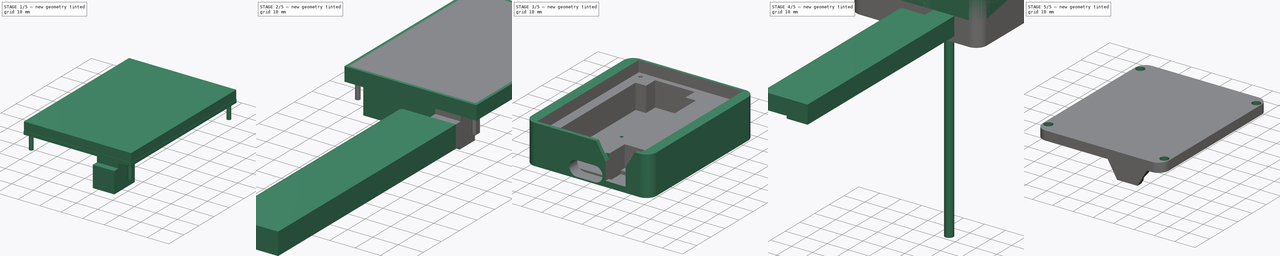
[diagram: build sequence overview — one tinted view per stage of 5, left to right]
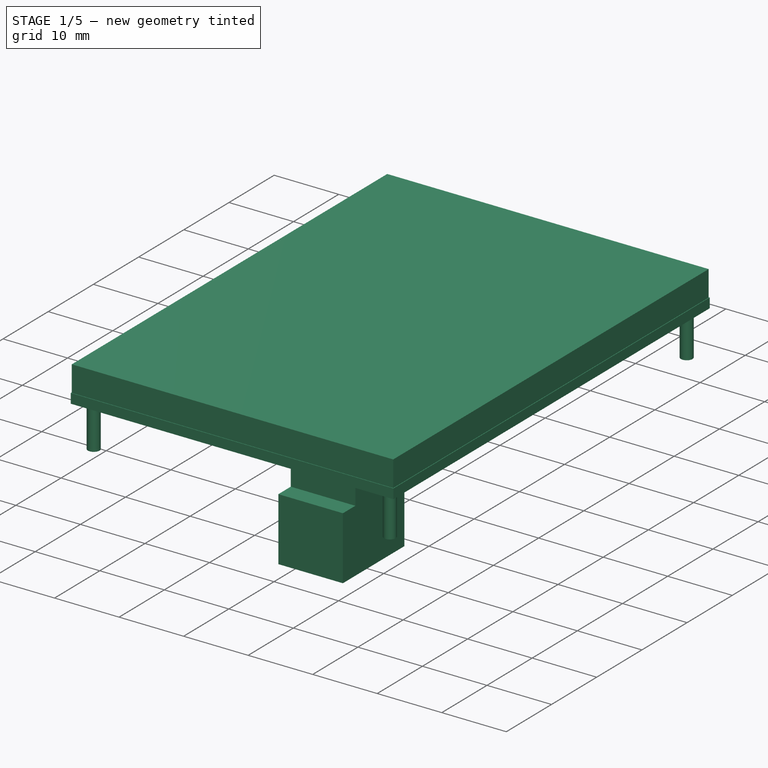
[diagram: stage 1 of 5 — iso view after this stage's code; geometry added in this stage tinted green]
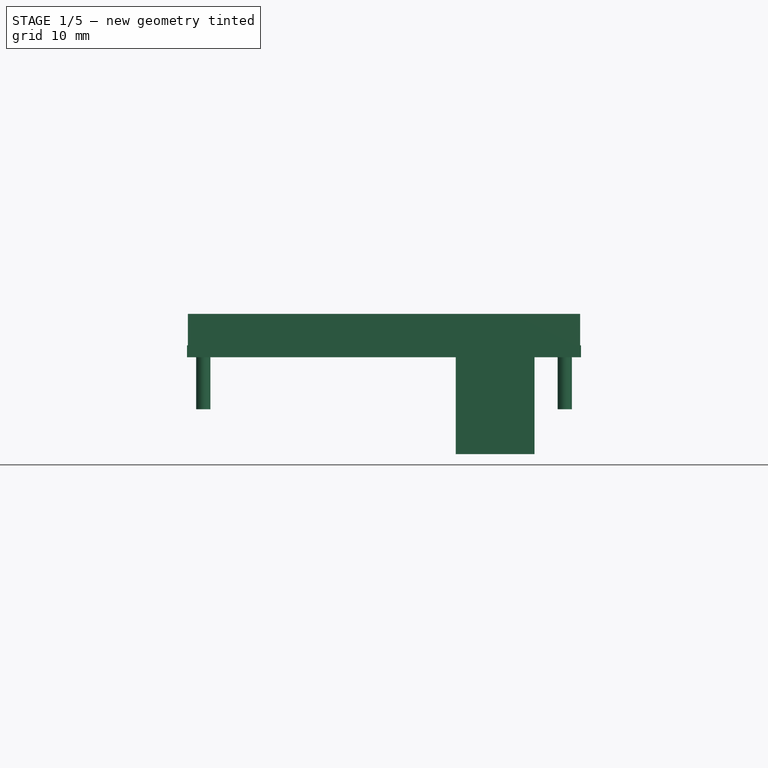
[diagram: stage 1 of 5 — front view after this stage's code; geometry added in this stage tinted green]
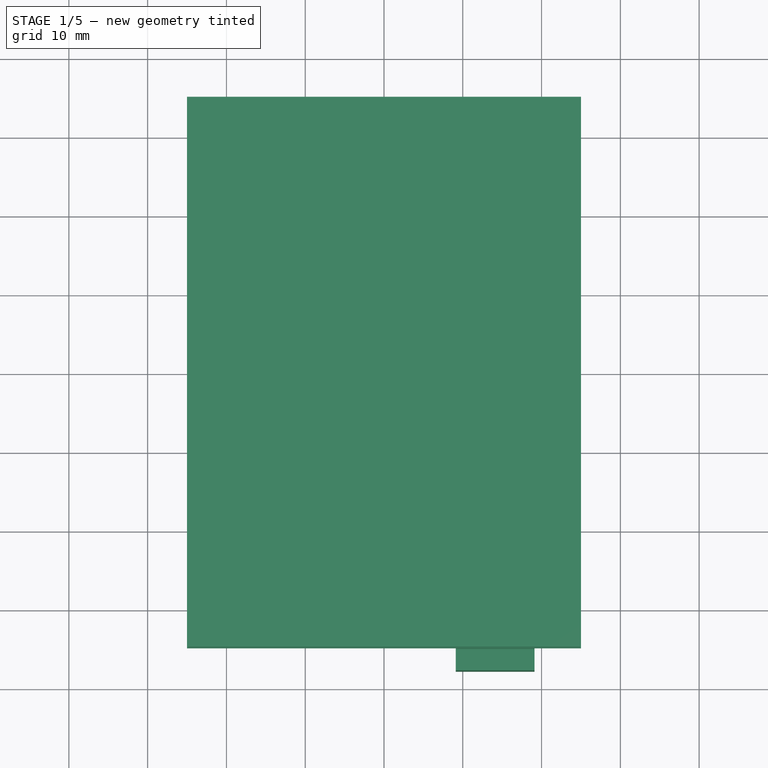
[diagram: stage 1 of 5 — top view after this stage's code; geometry added in this stage tinted green]
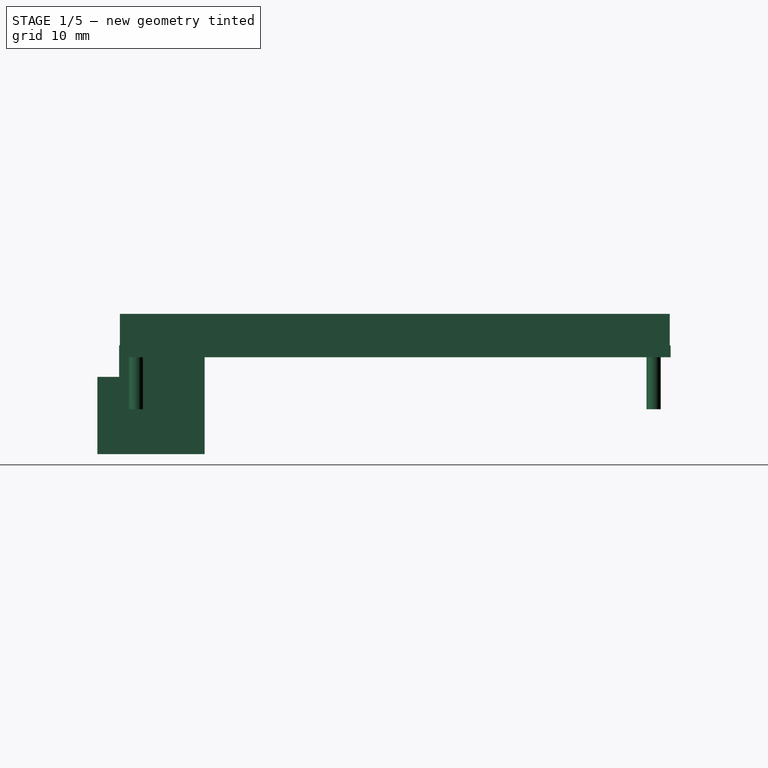
[diagram: stage 1 of 5 — right view after this stage's code; geometry added in this stage tinted green]
FCSTD DOCUMENT  (FreeCAD 1.0R39319 (Git))
Label: Digital audio bridge enclosure
License: All rights reserved
LicenseURL: http://en.wikipedia.org/wiki/All_rights_reserved
objects: Sketcher::SketchObject×16, PartDesign::Pad×12, PartDesign::Body×6, PartDesign::Pocket×5, PartDesign::SubShapeBinder×3, PartDesign::FeatureBase×3, PartDesign::Fillet×2, PartDesign::Boolean×2, PartDesign::Chamfer×2, Spreadsheet::Sheet×1
note: 114 computed .brp shape members not serialized (recipe doc carries the construction recipe); baked Part::Feature solids carry a one-line shape summary decoded from their .brp

FEATURE [Sketcher::SketchObject] Sketch
  ArcFitTolerance = 1e-06
  AttachmentSupport = -> [XY_Plane]
  FullyConstrained = true
  MakeInternals = false
  MapMode = 5
  sketch-geometry (5):
    g0: LineSegment StartX=-25 StartY=-35 StartZ=0 EndX=25 EndY=-35 EndZ=0
    g1: LineSegment StartX=25 StartY=-35 StartZ=0 EndX=25 EndY=35 EndZ=0
    g2: LineSegment StartX=25 StartY=35 StartZ=0 EndX=-25 EndY=35 EndZ=0
    g3: LineSegment StartX=-25 StartY=35 StartZ=0 EndX=-25 EndY=-35 EndZ=0
    g4: GeomPoint [constr] X=0 Y=0 Z=0
  constraints (12):
    c: Coincident(g0,g1)
    c: Coincident(g1,g2)
    c: Coincident(g2,g3)
    c: Coincident(g3,g0)
    c: Horizontal(g0)
    c: Horizontal(g2)
    c: Vertical(g1)
    c: Vertical(g3)
    c: Symmetric(g2,g0,g4)
    c: Distance(g1,g3) = 50
    c: Distance(g0,g2) = 70
    c: Coincident(g4,g-1)
FEATURE [PartDesign::Pad] Pad  label="Board"
  Direction = (0,0,1)
  Length = 1.5
  Length2 = 10
  Profile = -> Sketch
  ReferenceAxis = -> Sketch [N_Axis]
  Suppressed = false
  Type = 0
  expr: Length = <<Data>>.B2
FEATURE [Sketcher::SketchObject] Sketch001
  ArcFitTolerance = 1e-06
  AttachmentSupport = -> [Pad]
  ExternalGeometry = -> [Pad]
  FullyConstrained = true
  MakeInternals = false
  MapMode = 5
  Placement = pos=(0,0,1.5) rot=(0,0,1;0rad)
  expr: Constraints[10] = .Constraints.x
  expr: Constraints[11] = .Constraints.x
  expr: Constraints[8] = .Constraints.x
  sketch-geometry (4):
    g0: LineSegment StartX=-24.9 StartY=34.9 StartZ=0 EndX=-24.9 EndY=-34.9 EndZ=0
    g1: LineSegment StartX=-24.9 StartY=-34.9 StartZ=0 EndX=24.9 EndY=-34.9 EndZ=0
    g2: LineSegment StartX=24.9 StartY=-34.9 StartZ=0 EndX=24.9 EndY=34.9 EndZ=0
    g3: LineSegment StartX=24.9 StartY=34.9 StartZ=0 EndX=-24.9 EndY=34.9 EndZ=0
  constraints (12):
    c: Coincident(g0,g1)
    c: Coincident(g1,g2)
    c: Coincident(g2,g3)
    c: Coincident(g3,g0)
    c: Vertical(g0)
    c: Vertical(g2)
    c: Horizontal(g1)
    c: Horizontal(g3)
    c: Distance(g-5,g2) = 0.1
    c: Distance(g-4,g3) = 0.1  'x'
    c: Distance(g-3,g0) = 0.1
    c: Distance(g-6,g1) = 0.1
FEATURE [PartDesign::Pad] Pad001  label="Clearance for solder work and screws"
  BaseFeature = -> Pad
  Direction = (0,0,1)
  Length = 4
  Length2 = 10
  Profile = -> Sketch001
  ReferenceAxis = -> Sketch001 [N_Axis]
  Suppressed = false
  Type = 0
FEATURE [Sketcher::SketchObject] Sketch002
  ArcFitTolerance = 1e-06
  AttachmentSupport = -> [Pad001]
  ExternalGeometry = -> [Pad001]
  FullyConstrained = true
  MakeInternals = false
  MapMode = 5
  Placement = pos=(0,0,0) rot=(1,0,0;3.14159rad)
  expr: .Constraints.screw = <<Data>>.B17
  expr: Constraints[3] = .Constraints.screw
  expr: Constraints[4] = .Constraints.screw
  expr: Constraints[5] = .Constraints.screw
  sketch-geometry (4):
    g0: Circle CenterX=-22.94 CenterY=32.85 CenterZ=0 NormalX=0 NormalY=0 NormalZ=1 AngleXU=0 Radius=0.9
    g1: Circle CenterX=22.94 CenterY=32.85 CenterZ=0 NormalX=0 NormalY=0 NormalZ=1 AngleXU=0 Radius=0.9
    g2: Circle CenterX=-22.94 CenterY=-32.85 CenterZ=0 NormalX=0 NormalY=0 NormalZ=1 AngleXU=0 Radius=0.9
    g3: Circle CenterX=22.94 CenterY=-32.85 CenterZ=0 NormalX=0 NormalY=0 NormalZ=1 AngleXU=0 Radius=0.9
  constraints (9):
    c: Diameter(g0) = 1.8  'screw'
    c: Distance(g0,g-3) = 1.16
    c: Distance(g0,g-4) = 1.25
    c: Diameter(g1) = 1.8
    c: Diameter(g3) = 1.8
    c: Diameter(g2) = 1.8
    c: Symmetric(g0,g2,g-1)
    c: Symmetric(g0,g1,g-2)
    c: Symmetric(g1,g3,g-1)
FEATURE [PartDesign::Pad] Pad002  label="Screws"
  BaseFeature = -> Pad001
  Direction = (0,0,-1)
  Length = 6.6
  Length2 = 10
  Profile = -> Sketch002
  ReferenceAxis = -> Sketch002 [N_Axis]
  Suppressed = false
  Type = 0
  expr: Length = 8 mm + 0.1 mm - <<Board>>.Length
FEATURE [Sketcher::SketchObject] Sketch003
  ArcFitTolerance = 1e-06
  AttachmentSupport = -> [Pad002]
  ExternalGeometry = -> [Pad002]
  FullyConstrained = true
  MakeInternals = false
  MapMode = 5
  Placement = pos=(0,0,0) rot=(1,0,0;3.14159rad)
  expr: Constraints[10] = <<Data>>.B6
  expr: Constraints[11] = <<Data>>.B7 - <<Data>>.B4
  expr: Constraints[9] = <<Data>>.B5
  sketch-geometry (4):
    g0: LineSegment StartX=19.1 StartY=35 StartZ=0 EndX=9.1 EndY=35 EndZ=0
    g1: LineSegment StartX=9.1 StartY=35 StartZ=0 EndX=9.1 EndY=24.15 EndZ=0
    g2: LineSegment StartX=9.1 StartY=24.15 StartZ=0 EndX=19.1 EndY=24.15 EndZ=0
    g3: LineSegment StartX=19.1 StartY=24.15 StartZ=0 EndX=19.1 EndY=35 EndZ=0
  constraints (12):
    c: Coincident(g0,g1)
    c: Coincident(g1,g2)
    c: Coincident(g2,g3)
    c: Coincident(g3,g0)
    c: Horizontal(g0)
    c: Horizontal(g2)
    c: Vertical(g1)
    c: Vertical(g3)
    c: PointOnObject(g0,g-3)
    c: DistanceX(g0,g-3) = 5.9
    c: DistanceX(g0,g0) = 10
    c: DistanceY(g1,g1) = 10.85
FEATURE [Spreadsheet::Sheet] Spreadsheet  label="Data"
  cells = A1='Dimension; B1='Value; C1='Explanation; A2='Board thickness; B2==1.5 mm; C2='The thickness of the perfboard; A3='From bottom of board to bottom of diode protrusion (after soldering); B3==4 mm; C3='Measures how high the "chin" (bottom part) of the diode stands, starting from the other side of the board (the side where the solder points are); A4='From short edge of board to farthest point of diode protrusion (after soldering); B4==2.75 mm; C4='Measures how much the "chin" of the DLT1150a diode protrudes from the edge of the perfboard; A5='From long edge of board to side of diode; B5==5.9 mm; A6='Diode width; B6==10 mm; A7='Diode length; B7==13.6 mm; A8='From bottom of board to top of diode; B8==13.8 mm; A9='Top rear diode notch width; B9==2.8 mm; C9='See circuit shape for how this value affects the diode; A10='Top rear diode notch depth; B10==1.65 mm; C10='See circuit shape for how this value affects the diode; A11='Top front diode notch width; B11==2.2 mm; C11='See circuit shape for how this value affects the diode; A12='Top front diode notch depth; B12==1.1 mm; C12='See circuit shape for how this value affects the diode; A13='ESP32 surrounding tolerance; B13==1 mm; C13='Clearance around edges of ESP in box; A14='Cut depths for cables; B14==100 mm; C14='Absurdly large value for cuts in box (for the cables and the face of the diode) to go through; A15='Box length; B15=62; A16='Box width; B16=75; A17='Screw inner thread; B17==1.8 mm; C17='The size of the hole to bore for screws; A18='Box fillet radius; B18==5 mm; A19='Screw head size; B19==4 mm; C19='The size of the head of the screws
FEATURE [PartDesign::Pad] Pad003  label="Diode bottom"
  BaseFeature = -> Pad002
  Direction = (0,0,-1)
  Length = 2.5
  Length2 = 10
  Profile = -> Sketch003
  ReferenceAxis = -> Sketch003 [N_Axis]
  Suppressed = false
  Type = 0
  expr: Length = <<Data>>.B3 - <<Data>>.B2
FEATURE [Sketcher::SketchObject] Sketch004
  ArcFitTolerance = 1e-06
  AttachmentSupport = -> [Pad003]
  ExternalGeometry = -> [Pad003]
  FullyConstrained = true
  MakeInternals = false
  MapMode = 5
  Placement = pos=(0,0,-2.5) rot=(1,0,0;3.14159rad)
  expr: Constraints[9] = <<Data>>.B7
  sketch-geometry (4):
    g0: LineSegment StartX=9.1 StartY=24.15 StartZ=0 EndX=19.1 EndY=24.15 EndZ=0
    g1: LineSegment StartX=19.1 StartY=24.15 StartZ=0 EndX=19.1 EndY=37.75 EndZ=0
    g2: LineSegment StartX=19.1 StartY=37.75 StartZ=0 EndX=9.1 EndY=37.75 EndZ=0
    g3: LineSegment StartX=9.1 StartY=37.75 StartZ=0 EndX=9.1 EndY=24.15 EndZ=0
  constraints (10):
    c: Coincident(g0,g1)
    c: Coincident(g1,g2)
    c: Coincident(g2,g3)
    c: Coincident(g3,g0)
    c: Horizontal(g2)
    c: Vertical(g1)
    c: Vertical(g3)
    c: Coincident(g0,g-3)
    c: Coincident(g0,g-3)
    c: DistanceY(g3,g3) = 13.6
FEATURE [PartDesign::Pad] Pad004  label="Diode top"
  BaseFeature = -> Pad003
  Direction = (0,0,-1)
  Length = 9.8
  Length2 = 10
  Profile = -> Sketch004
  ReferenceAxis = -> Sketch004 [N_Axis]
  Suppressed = false
  Type = 0
  expr: Length = <<Data>>.B8 - <<Diode bottom>>.Length - <<Board>>.Length
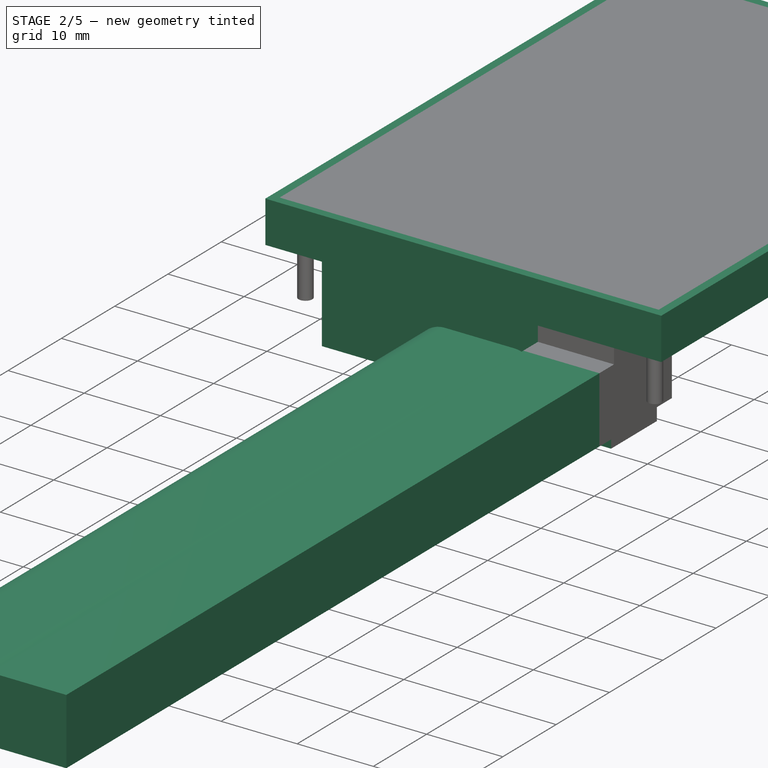
[diagram: stage 2 of 5 — iso view after this stage's code; geometry added in this stage tinted green]
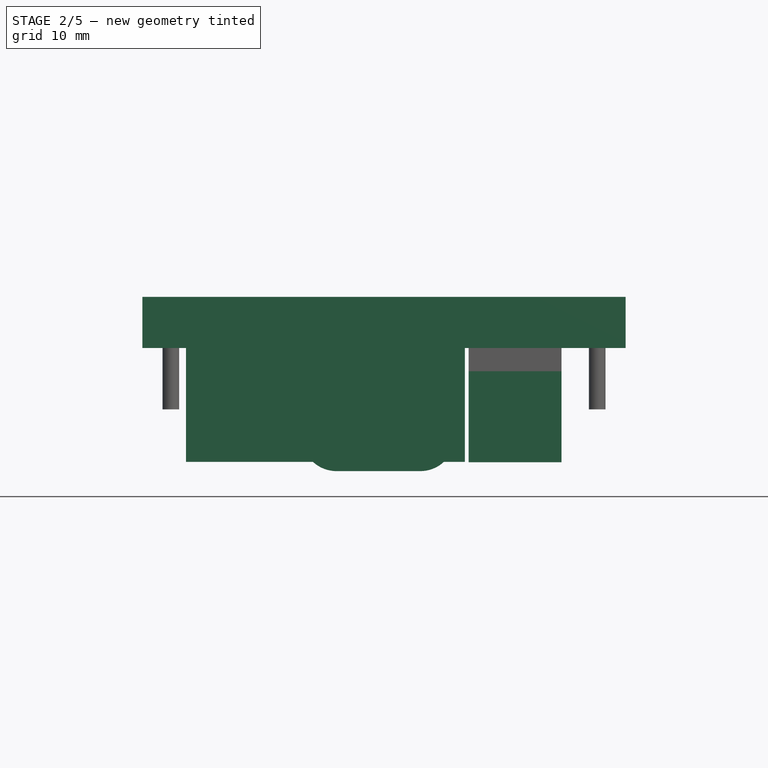
[diagram: stage 2 of 5 — front view after this stage's code; geometry added in this stage tinted green]
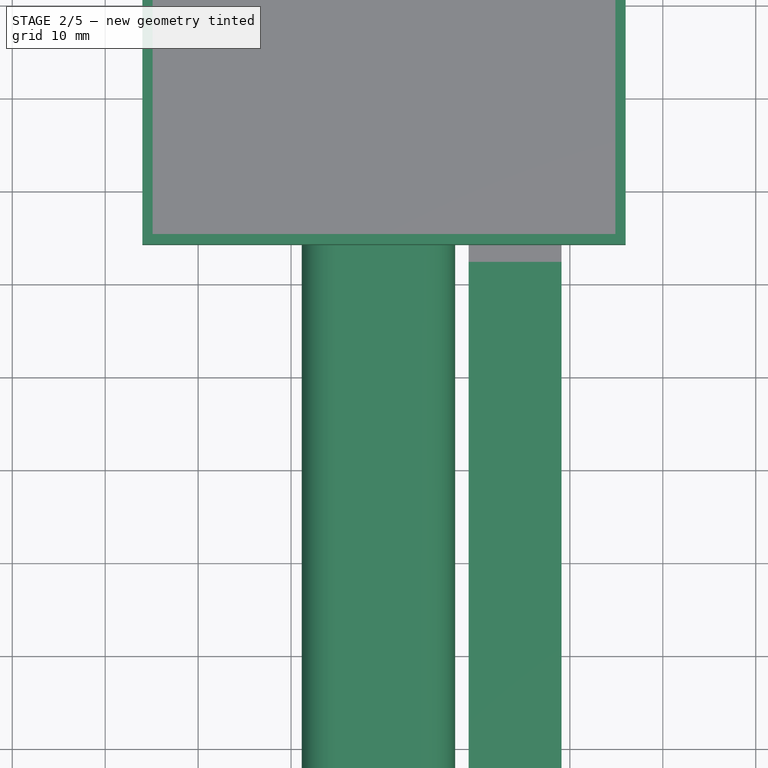
[diagram: stage 2 of 5 — top view after this stage's code; geometry added in this stage tinted green]
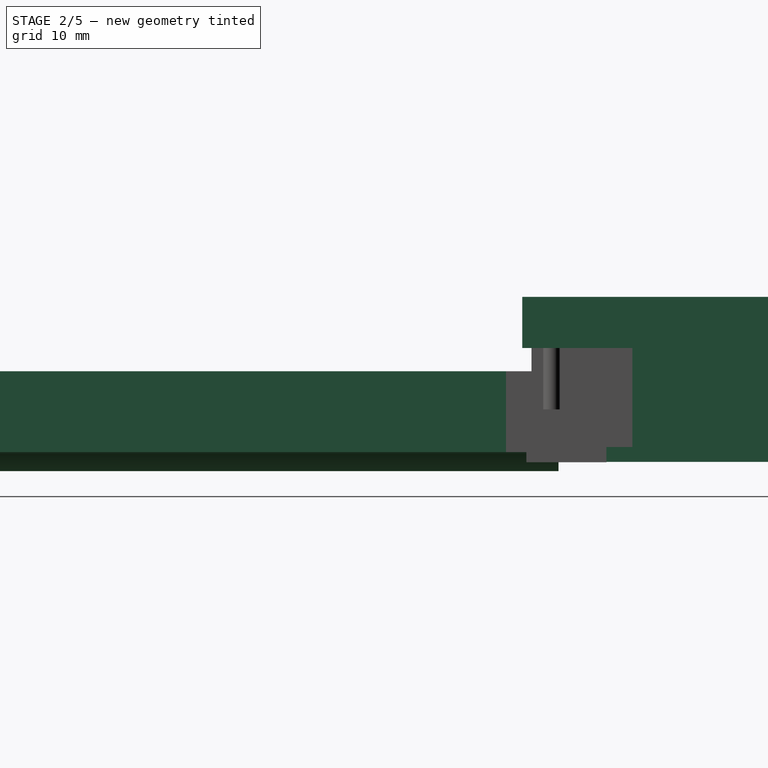
[diagram: stage 2 of 5 — right view after this stage's code; geometry added in this stage tinted green]
FEATURE [Sketcher::SketchObject] Sketch005
  ArcFitTolerance = 1e-06
  AttachmentSupport = -> [Pad004]
  ExternalGeometry = -> [Pad004]
  FullyConstrained = true
  MakeInternals = false
  MapMode = 5
  Placement = pos=(19.1,0,0) rot=(0.57735,0.57735,0.57735;2.0944rad)
  expr: Constraints[18] = <<Data>>.B9
  expr: Constraints[19] = <<Data>>.B10
  expr: Constraints[20] = <<Data>>.B11
  expr: Constraints[21] = <<Data>>.B12
  sketch-geometry (8):
    g0: LineSegment StartX=-37.75 StartY=-12.3 StartZ=0 EndX=-35.55 EndY=-12.3 EndZ=0
    g1: LineSegment StartX=-35.55 StartY=-12.3 StartZ=0 EndX=-35.55 EndY=-11.2 EndZ=0
    g2: LineSegment StartX=-35.55 StartY=-11.2 StartZ=0 EndX=-37.75 EndY=-11.2 EndZ=0
    g3: LineSegment StartX=-37.75 StartY=-11.2 StartZ=0 EndX=-37.75 EndY=-12.3 EndZ=0
    g4: LineSegment StartX=-24.15 StartY=-12.3 StartZ=0 EndX=-24.15 EndY=-10.65 EndZ=0
    g5: LineSegment StartX=-24.15 StartY=-10.65 StartZ=0 EndX=-26.95 EndY=-10.65 EndZ=0
    g6: LineSegment StartX=-26.95 StartY=-10.65 StartZ=0 EndX=-26.95 EndY=-12.3 EndZ=0
    g7: LineSegment StartX=-26.95 StartY=-12.3 StartZ=0 EndX=-24.15 EndY=-12.3 EndZ=0
  constraints (22):
    c: Coincident(g0,g1)
    c: Coincident(g1,g2)
    c: Coincident(g2,g3)
    c: Coincident(g3,g0)
    c: Horizontal(g0)
    c: Horizontal(g2)
    c: Vertical(g1)
    c: Vertical(g3)
    c: Coincident(g0,g-4)
    c: Coincident(g4,g5)
    c: Coincident(g5,g6)
    c: Coincident(g6,g7)
    c: Coincident(g7,g4)
    c: Vertical(g4)
    c: Vertical(g6)
    c: Horizontal(g5)
    c: Horizontal(g7)
    c: Coincident(g4,g-3)
    c: DistanceX(g7,g7) = 2.8
    c: DistanceY(g4,g4) = 1.65
    c: DistanceX(g0,g0) = 2.2
    c: DistanceY(g3,g3) = 1.1
FEATURE [PartDesign::Pocket] Pocket  label="Notches on diode top (face / back sides)"
  BaseFeature = -> Pad004
  Direction = (-1,0,0)
  Length = 10
  Length2 = 5
  Profile = -> Sketch005
  ReferenceAxis = -> Sketch005 [N_Axis]
  Suppressed = false
  Type = 0
  expr: Length = <<Data>>.B6
FEATURE [Sketcher::SketchObject] Sketch006
  ArcFitTolerance = 1e-06
  AttachmentSupport = -> [Pocket]
  ExternalGeometry = -> [Pocket]
  FullyConstrained = true
  MakeInternals = false
  MapMode = 5
  Placement = pos=(0,0,0) rot=(1,0,0;3.14159rad)
  expr: Constraints[18] = 2.5 mm - <<Data>>.B13
  expr: Constraints[20] = 4.7 mm - <<Data>>.B13
  expr: Constraints[3] = 3.9 mm - <<Data>>.B13
  expr: Constraints[7] = 17.3 mm - <<Data>>.B13
  sketch-geometry (8):
    g0: LineSegment StartX=8.7 StartY=32.1 StartZ=0 EndX=-21.3 EndY=32.1 EndZ=0
    g1: LineSegment StartX=-21.3 StartY=32.1 StartZ=0 EndX=-21.3 EndY=-27 EndZ=0
    g2: LineSegment StartX=-16.1 StartY=-33.5 StartZ=0 EndX=3.5 EndY=-33.5 EndZ=0
    g3: LineSegment StartX=8.7 StartY=-27 StartZ=0 EndX=8.7 EndY=32.1 EndZ=0
    g4: LineSegment StartX=-21.3 StartY=-27 StartZ=0 EndX=-16.1 EndY=-27 EndZ=0
    g5: LineSegment StartX=-16.1 StartY=-27 StartZ=0 EndX=-16.1 EndY=-33.5 EndZ=0
    g6: LineSegment StartX=3.5 StartY=-33.5 StartZ=0 EndX=3.5 EndY=-27 EndZ=0
    g7: LineSegment StartX=3.5 StartY=-27 StartZ=0 EndX=8.7 EndY=-27 EndZ=0
  constraints (24):
    c: Coincident(g3,g0)
    c: Coincident(g0,g1)
    c: Horizontal(g0)
    c: Distance(g0,g-5) = 2.9
    c: Vertical(g1)
    c: Horizontal(g2)
    c: Vertical(g3)
    c: Distance(g-4,g3) = 16.3
    c: Coincident(g1,g4)
    c: Horizontal(g4)
    c: Coincident(g4,g5)
    c: Coincident(g5,g2)
    c: Vertical(g5)
    c: Coincident(g2,g6)
    c: Vertical(g6)
    c: Coincident(g6,g7)
    c: Coincident(g7,g3)
    c: Horizontal(g7)
    c: Distance(g2,g-6) = 1.5
    c: DistanceX(g7,g7) = 5.2
    c: Distance(g1,g-3) = 3.7
    c: Equal(g7,g4)
    c: Equal(g5,g6)
    c: DistanceY(g6,g6) = 6.5
FEATURE [PartDesign::Pad] Pad005  label="ESP shape"
  BaseFeature = -> Pocket
  Direction = (0,0,-1)
  Length = 12.25
  Length2 = 10
  Profile = -> Sketch006
  ReferenceAxis = -> Sketch006 [N_Axis]
  Suppressed = false
  Type = 0
  expr: Length = 12.75 mm - <<Board>>.Length + <<Data>>.B13
FEATURE [Sketcher::SketchObject] Sketch007
  ArcFitTolerance = 1e-06
  AttachmentSupport = -> [Pad005]
  ExternalGeometry = -> [Pad005]
  FullyConstrained = false
  MakeInternals = false
  MapMode = 5
  Placement = pos=(0,-32.1,0) rot=(1,0,0;1.5708rad)
  expr: Constraints[1] = <<Data>>.B13 + 3.5 mm / 2
  expr: Constraints[3] = 3.8 mm + <<Data>>.B13
  sketch-geometry (5):
    g0: LineSegment [constr] StartX=3.9 StartY=-9.5 StartZ=0 EndX=-5.1 EndY=-9.5 EndZ=0
    g1: ArcOfCircle CenterX=3.89834 CenterY=-9.5 CenterZ=0 NormalX=0 NormalY=0 NormalZ=1 AngleXU=0 Radius=3.75 StartAngle=4.71239 EndAngle=7.85398
    g2: ArcOfCircle CenterX=-5.1 CenterY=-9.5 CenterZ=0 NormalX=0 NormalY=0 NormalZ=1 AngleXU=0 Radius=3.75 StartAngle=1.5708 EndAngle=4.71239
    g3: LineSegment StartX=3.89834 StartY=-13.25 StartZ=0 EndX=-5.1 EndY=-13.25 EndZ=0
    g4: LineSegment StartX=3.89834 StartY=-5.75 StartZ=0 EndX=-5.1 EndY=-5.75 EndZ=0
  constraints (12):
    c: Horizontal(g0)
    c: Distance(g0,g-3) = 2.75
    c: DistanceX(g0,g0) = 9
    c: DistanceX(g0,g-3) = 4.8
    c: Tangent(g1,g3) = 1.5708
    c: Tangent(g1,g4) = -1.5708
    c: Tangent(g2,g3) = 1.5708
    c: Tangent(g2,g4) = -1.5708
    c: Equal(g1,g2)
    c: Horizontal(g4)
    c: Coincident(g2,g0)
    c: DistanceY(g2,g2) = 7.5
FEATURE [PartDesign::Pad] Pad006  label="Extension cut for USB cable"
  BaseFeature = -> Pad005
  Direction = (0,-1,2e-16)
  Length = 100
  Length2 = 10
  Profile = -> Sketch007
  ReferenceAxis = -> Sketch007 [N_Axis]
  Suppressed = false
  Type = 0
  expr: Length = <<Data>>.B14
FEATURE [PartDesign::Pad] Pad007  label="Extension cut for SPDIF cable"
  BaseFeature = -> Pad006
  Direction = (0,-1,0)
  Length = 100
  Length2 = 10
  Profile = -> Pad006 [Face39]
  Suppressed = false
  Type = 0
  expr: Length = <<Data>>.B14
FEATURE [Sketcher::SketchObject] Sketch009
  ArcFitTolerance = 1e-06
  AttachmentSupport = -> [Pad007]
  ExternalGeometry = -> [Pad007]
  FullyConstrained = true
  MakeInternals = false
  MapMode = 5
  Placement = pos=(0,0,1.5) rot=(0,0,1;0rad)
  expr: Constraints[10] = <<Data>>.B13
  expr: Constraints[11] = <<Data>>.B13
  expr: Constraints[8] = <<Data>>.B13
  expr: Constraints[9] = <<Data>>.B13
  sketch-geometry (4):
    g0: LineSegment StartX=-26 StartY=36 StartZ=0 EndX=-26 EndY=-36 EndZ=0
    g1: LineSegment StartX=-26 StartY=-36 StartZ=0 EndX=26 EndY=-36 EndZ=0
    g2: LineSegment StartX=26 StartY=-36 StartZ=0 EndX=26 EndY=36 EndZ=0
    g3: LineSegment StartX=26 StartY=36 StartZ=0 EndX=-26 EndY=36 EndZ=0
  constraints (12):
    c: Coincident(g0,g1)
    c: Coincident(g1,g2)
    c: Coincident(g2,g3)
    c: Coincident(g3,g0)
    c: Vertical(g0)
    c: Vertical(g2)
    c: Horizontal(g1)
    c: Horizontal(g3)
    c: Distance(g3,g-6) = 1
    c: Distance(g-5,g2) = 1
    c: Distance(g0,g-3) = 1
    c: Distance(g-4,g1) = 1
FEATURE [PartDesign::Pad] Pad009
  BaseFeature = -> Pad007
  Direction = (0,0,1)
  Length = 4
  Length2 = 1.5
  Profile = -> Sketch009
  ReferenceAxis = -> Sketch009 [N_Axis]
  Suppressed = false
  Type = 4
  expr: Length = <<Clearance for solder work and screws>>.Length
  expr: Length2 = <<Board>>.Length
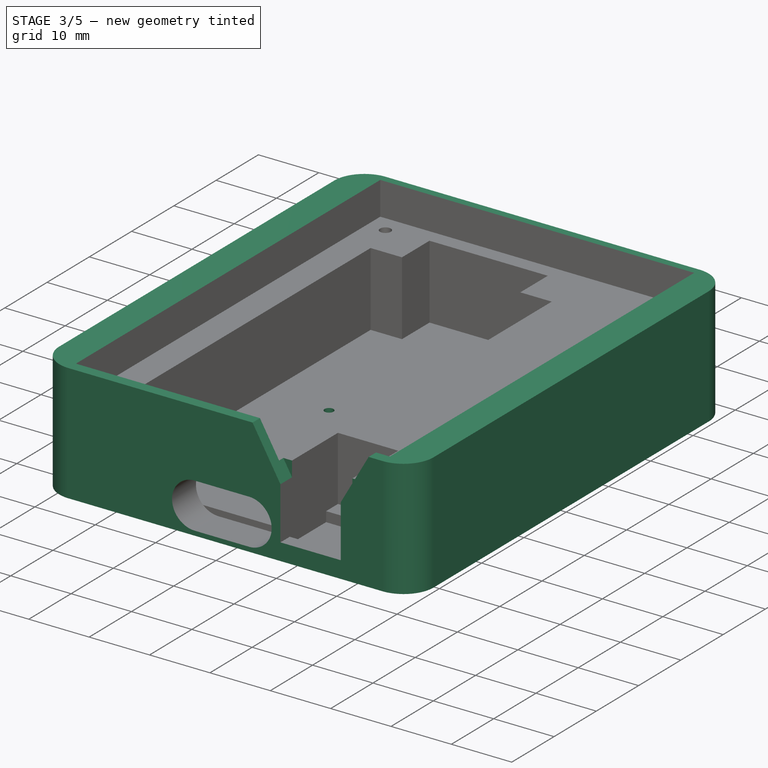
[diagram: stage 3 of 5 — iso view after this stage's code; geometry added in this stage tinted green]
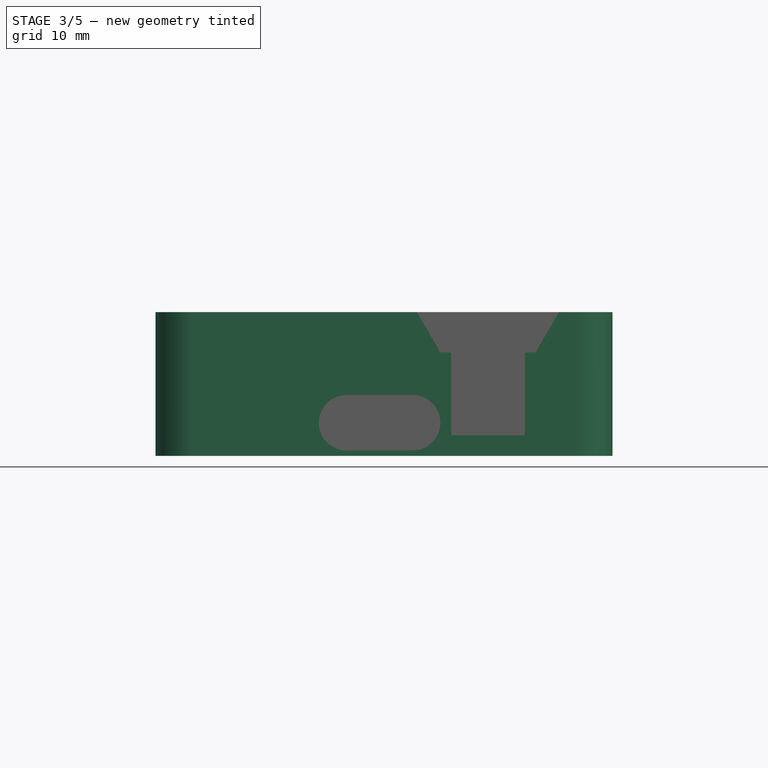
[diagram: stage 3 of 5 — front view after this stage's code; geometry added in this stage tinted green]
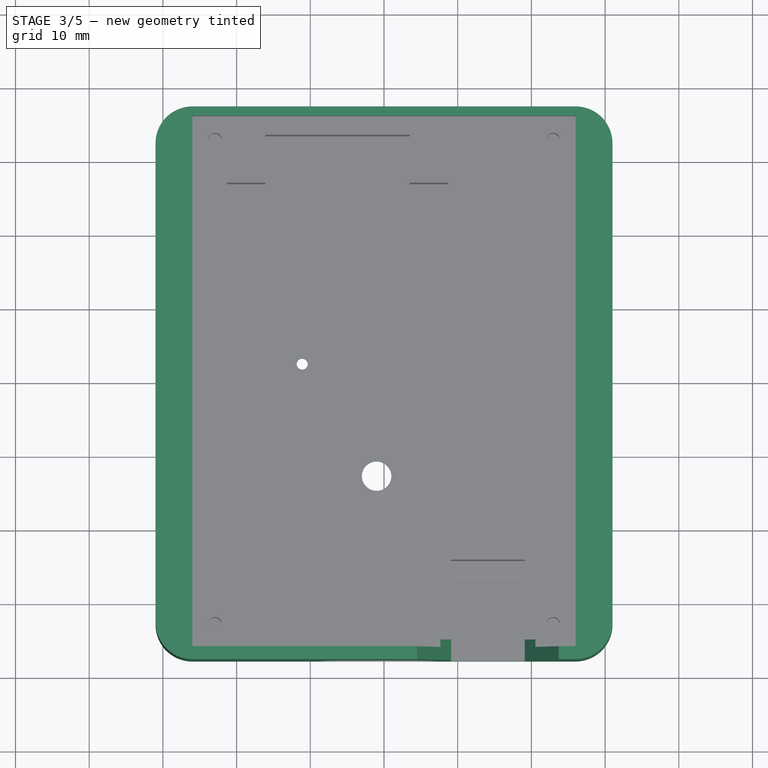
[diagram: stage 3 of 5 — top view after this stage's code; geometry added in this stage tinted green]
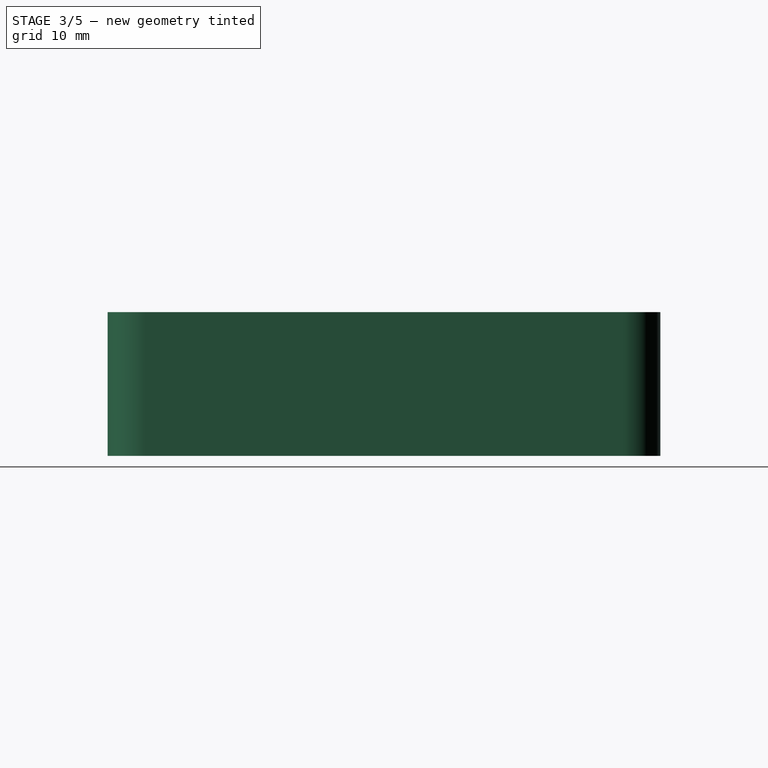
[diagram: stage 3 of 5 — right view after this stage's code; geometry added in this stage tinted green]
FEATURE [PartDesign::SubShapeBinder] Binder
  BindCopyOnChange = 0
  BindMode = 0
  ClaimChildren = false
  Context = -> Body001 [Binder.]
  Fuse = false
  MakeFace = true
  OffsetFill = false
  OffsetIntersection = false
  OffsetJoinType = 0
  OffsetOpenResult = false
  PartialLoad = false
  Relative = true
  Support = -> [Body]
  _Version = 2
FEATURE [Sketcher::SketchObject] Sketch008
  ArcFitTolerance = 1e-06
  AttachmentSupport = -> [Binder]
  ExternalGeometry = -> [Binder]
  FullyConstrained = true
  MakeInternals = false
  MapMode = 5
  Placement = pos=(0,0,0) rot=(1,0,0;3.14159rad)
  expr: Constraints[8] = <<Data>>.B15
  expr: Constraints[9] = -<<Data>>.B16
  sketch-geometry (4):
    g0: LineSegment StartX=-31 StartY=37.75 StartZ=0 EndX=31 EndY=37.75 EndZ=0
    g1: LineSegment StartX=31 StartY=37.75 StartZ=0 EndX=31 EndY=-37.25 EndZ=0
    g2: LineSegment StartX=31 StartY=-37.25 StartZ=0 EndX=-31 EndY=-37.25 EndZ=0
    g3: LineSegment StartX=-31 StartY=-37.25 StartZ=0 EndX=-31 EndY=37.75 EndZ=0
  constraints (11):
    c: Coincident(g0,g1)
    c: Coincident(g1,g2)
    c: Coincident(g2,g3)
    c: Coincident(g3,g0)
    c: Horizontal(g0)
    c: Vertical(g1)
    c: Vertical(g3)
    c: PointOnObject(g-3,g0)
    c: DistanceX(g0,g0) = 62
    c: DistanceY(g1,g1) = -75
    c: Symmetric(g2,g1,g-2)
FEATURE [PartDesign::Pad] Pad008
  Direction = (0,0,-1)
  Length = 14
  Length2 = 5.5
  Profile = -> Sketch008
  ReferenceAxis = -> Sketch008 [N_Axis]
  Suppressed = false
  Type = 4
  expr: Length2 = <<Clearance for solder work and screws>>.Length + <<Board>>.Length
FEATURE [PartDesign::SubShapeBinder] Binder002  label="lower box binder"
  BindCopyOnChange = 0
  BindMode = 0
  ClaimChildren = false
  Context = -> Body003 [Binder002.]
  Fuse = false
  MakeFace = true
  OffsetFill = false
  OffsetIntersection = false
  OffsetJoinType = 0
  OffsetOpenResult = false
  PartialLoad = false
  Relative = true
  Support = -> [Body001[Pocket002.]]
  _Version = 2
FEATURE [Sketcher::SketchObject] Sketch015
  ArcFitTolerance = 1e-06
  AttachmentSupport = -> [Pad007]
  ExternalGeometry = -> [Pad007]
  FullyConstrained = true
  MakeInternals = false
  MapMode = 5
  Placement = pos=(0,0,-12.25) rot=(1,0,0;3.14159rad)
  expr: Constraints[0] = 18.5 mm + <<Data>>.B13
  expr: Constraints[2] = 9.2 mm + <<Data>>.B13
  expr: Constraints[3] = 34.7 mm - 1 mm + <<Data>>.B13
  expr: Constraints[5] = 21.8 mm + <<Data>>.B13 - 2.5 mm
  sketch-geometry (2):
    g0: Circle CenterX=-1 CenterY=12.6 CenterZ=0 NormalX=0 NormalY=0 NormalZ=1 AngleXU=0 Radius=2
    g1: Circle CenterX=-11.1 CenterY=-2.6 CenterZ=0 NormalX=0 NormalY=0 NormalZ=1 AngleXU=0 Radius=0.75
  constraints (6):
    c: Distance(g0,g-4) = 19.5
    c: Diameter(g0) = 4
    c: Distance(g1,g-5) = 10.2
    c: Distance(g1,g-4) = 34.7
    c: Diameter(g1) = 1.5
    c: Distance(g0,g-5) = 20.3
FEATURE [PartDesign::Pad] Pad011
  BaseFeature = -> Pad009
  Direction = (0,0,-1)
  Length = 100
  Length2 = 10
  Profile = -> Sketch015
  ReferenceAxis = -> Sketch015 [N_Axis]
  Suppressed = false
  Type = 0
  expr: Length = <<Data>>.B14
FEATURE [PartDesign::Body] Body  label="Circuit shape"
  AllowCompound = true
  Group = -> [Sketch,Pad,Sketch001,Pad001,Sketch002,Pad002,Sketch003,Pad003,Sketch004,Pad004,Sketch005,Pocket,Sketch006,Pad005,Sketch007,Pad006,Pad007,Sketch009,Pad009,Sketch015,Pad011]
  Origin = -> Origin
  Tip = -> Pad011
FEATURE [PartDesign::FeatureBase] Clone
  BaseFeature = -> Body
  Suppressed = false
FEATURE [PartDesign::Body] Body002  label="Circuit shape for box lower cut"
  AllowCompound = true
  Group = -> [Clone]
  Origin = -> Origin002
  Tip = -> Clone
FEATURE [PartDesign::Boolean] Boolean
  BaseFeature = -> Pad008
  Group = -> [Body002]
  Suppressed = false
  Type = 1
  UsePlacement = true
FEATURE [Sketcher::SketchObject] Sketch010
  ArcFitTolerance = 1e-06
  AttachmentSupport = -> [Boolean]
  ExternalGeometry = -> [Boolean]
  FullyConstrained = true
  MakeInternals = false
  MapMode = 5
  Placement = pos=(0,-35,0) rot=(0,0.707107,0.707107;3.14159rad)
  sketch-geometry (4):
    g0: LineSegment StartX=-19.1 StartY=-2.5 StartZ=0 EndX=-9.1 EndY=-2.5 EndZ=0
    g1: LineSegment StartX=-9.1 StartY=-2.5 StartZ=0 EndX=-4.4812 EndY=5.5 EndZ=0
    g2: LineSegment StartX=-19.1 StartY=-2.5 StartZ=0 EndX=-23.7188 EndY=5.5 EndZ=0
    g3: LineSegment StartX=-23.7188 StartY=5.5 StartZ=0 EndX=-4.4812 EndY=5.5 EndZ=0
  constraints (10):
    c: Coincident(g0,g-3)
    c: Coincident(g0,g-3)
    c: Coincident(g1,g0)
    c: PointOnObject(g1,g-4)
    c: Coincident(g2,g0)
    c: PointOnObject(g2,g-4)
    c: Angle(g-3,g2) = 2.0944
    c: Angle(g1,g0) = 2.0944
    c: Coincident(g3,g2)
    c: Coincident(g3,g1)
FEATURE [PartDesign::Pocket] Pocket001
  BaseFeature = -> Boolean
  Direction = (0,-1,2e-16)
  Length = 5
  Length2 = 5
  Profile = -> Sketch010
  ReferenceAxis = -> Sketch010 [N_Axis]
  Suppressed = false
  Type = 1
FEATURE [PartDesign::Body] Body004  label="Circuit shape for box upper cut"
  AllowCompound = true
  Group = -> [Clone001]
  Origin = -> Origin004
  Tip = -> Clone001
FEATURE [PartDesign::Fillet] Fillet
  Base = -> Pocket001 [Edge8,Edge48,Edge54,Edge10]
  BaseFeature = -> Pocket001
  Radius = 5
  SupportTransform = false
  Suppressed = false
  UseAllEdges = false
  expr: Radius = <<Data>>.B18
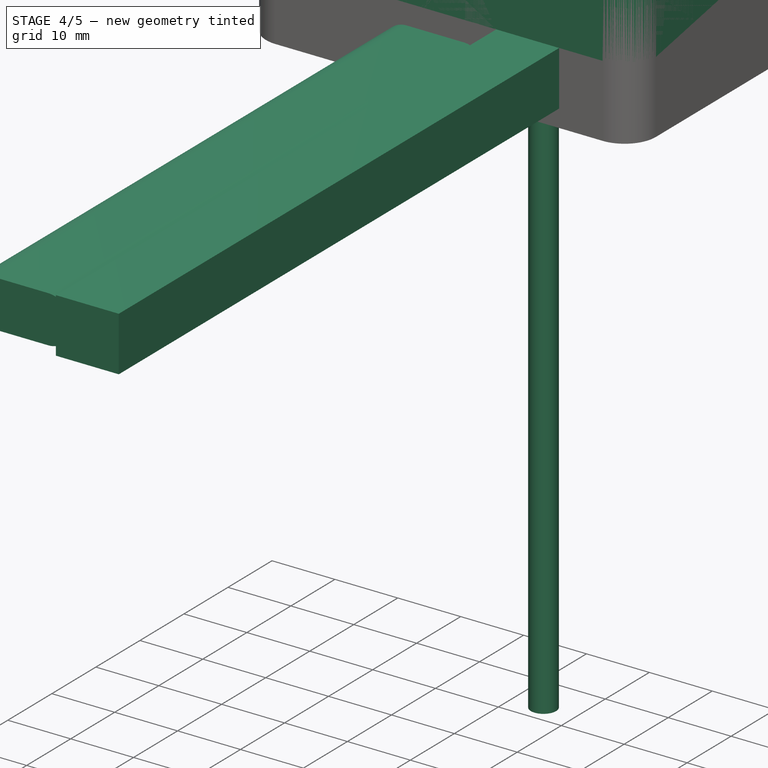
[diagram: stage 4 of 5 — iso view after this stage's code; geometry added in this stage tinted green]
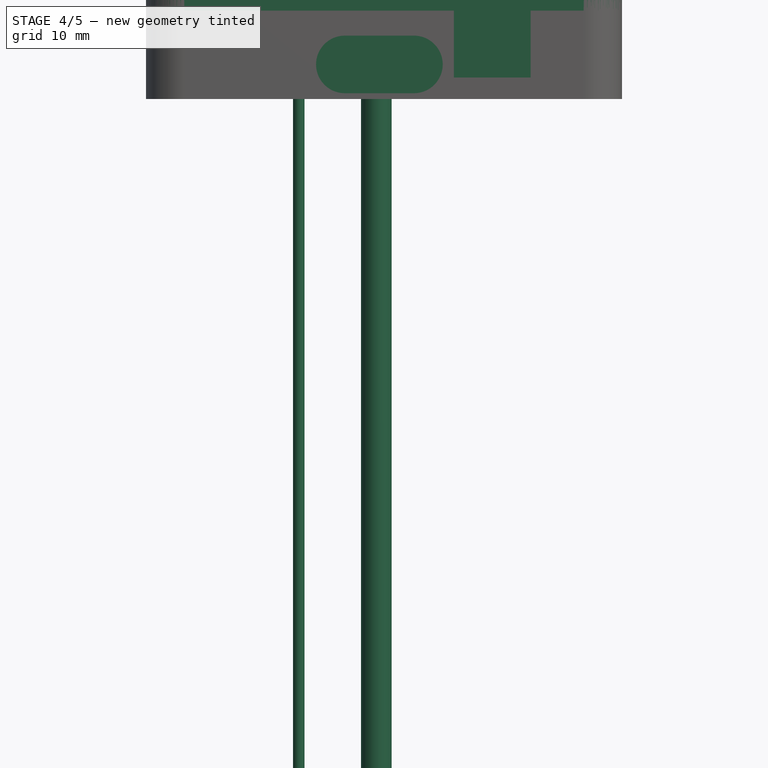
[diagram: stage 4 of 5 — front view after this stage's code; geometry added in this stage tinted green]
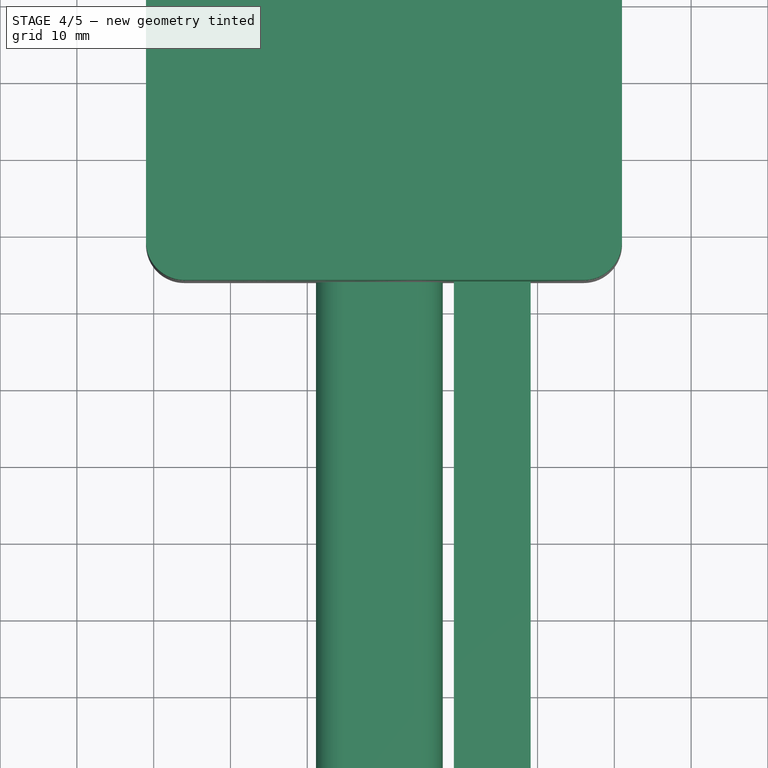
[diagram: stage 4 of 5 — top view after this stage's code; geometry added in this stage tinted green]
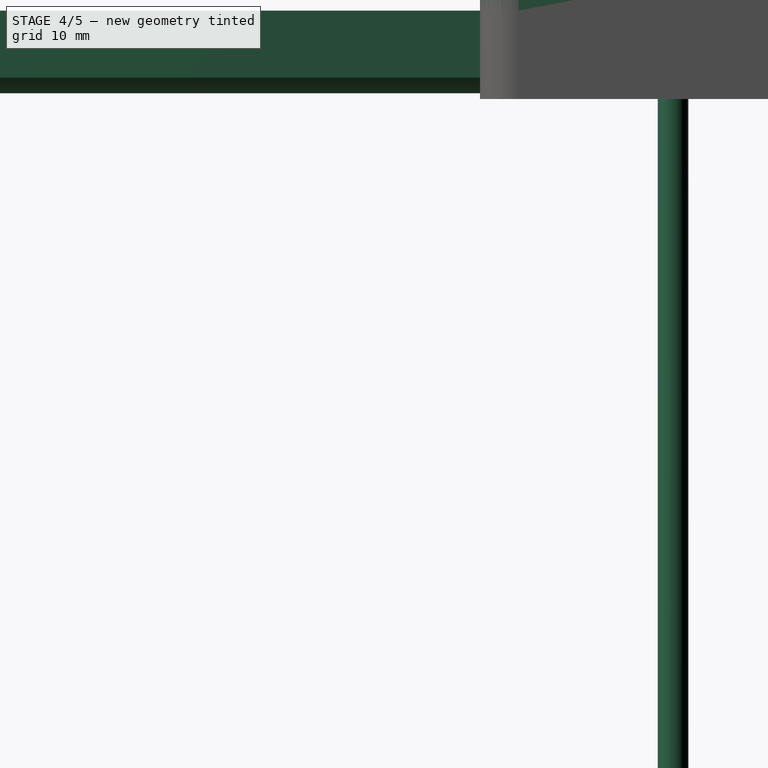
[diagram: stage 4 of 5 — right view after this stage's code; geometry added in this stage tinted green]
FEATURE [PartDesign::SubShapeBinder] Binder001  label="circuit binder"
  BindCopyOnChange = 0
  BindMode = 0
  ClaimChildren = false
  Context = -> Body003 [Binder001.]
  Fuse = false
  MakeFace = true
  OffsetFill = false
  OffsetIntersection = false
  OffsetJoinType = 0
  OffsetOpenResult = false
  PartialLoad = false
  Relative = true
  Support = -> [Body]
  _Version = 2
FEATURE [Sketcher::SketchObject] Sketch011
  ArcFitTolerance = 1e-06
  AttachmentSupport = -> [Binder001]
  ExternalGeometry = -> [Binder001]
  FullyConstrained = true
  MakeInternals = false
  MapMode = 5
  Placement = pos=(0,0,-2.5) rot=(0,0,1;0rad)
  expr: Constraints[7] = -<<Data>>.B16
  expr: Constraints[8] = <<Data>>.B15
  sketch-geometry (4):
    g0: LineSegment StartX=31 StartY=-37.75 StartZ=0 EndX=-31 EndY=-37.75 EndZ=0
    g1: LineSegment StartX=-31 StartY=-37.75 StartZ=0 EndX=-31 EndY=37.25 EndZ=0
    g2: LineSegment StartX=-31 StartY=37.25 StartZ=0 EndX=31 EndY=37.25 EndZ=0
    g3: LineSegment StartX=31 StartY=37.25 StartZ=0 EndX=31 EndY=-37.75 EndZ=0
  constraints (11):
    c: Coincident(g0,g1)
    c: Coincident(g1,g2)
    c: Coincident(g2,g3)
    c: Coincident(g3,g0)
    c: Horizontal(g0)
    c: Vertical(g1)
    c: Vertical(g3)
    c: DistanceY(g1,g1) = -75
    c: DistanceX(g2,g2) = 62
    c: PointOnObject(g-3,g0)
    c: Symmetric(g1,g2,g-2)
FEATURE [PartDesign::Pad] Pad010
  Direction = (0,0,1)
  Length = 12.5
  Length2 = 10
  Profile = -> Sketch011
  ReferenceAxis = -> Sketch011 [N_Axis]
  Suppressed = false
  Type = 0
FEATURE [PartDesign::Fillet] Fillet001
  Base = -> Pad010 [Edge8,Edge5,Edge1,Edge2]
  BaseFeature = -> Pad010
  Radius = 5
  SupportTransform = false
  Suppressed = false
  UseAllEdges = false
  expr: Radius = Fillet.Radius
FEATURE [PartDesign::FeatureBase] Clone001
  BaseFeature = -> Body
  Suppressed = false
FEATURE [Sketcher::SketchObject] Sketch012
  ArcFitTolerance = 1e-06
  AttachmentSupport = -> [Fillet]
  ExternalGeometry = -> [Fillet]
  FullyConstrained = true
  MakeInternals = false
  MapMode = 5
  Placement = pos=(0,0,5.5) rot=(0,0,1;0rad)
  expr: .Constraints.screw = Sketch002.Constraints.screw
  expr: Constraints[11] = .Constraints.screw
  expr: Constraints[12] = .Constraints.screw
  expr: Constraints[13] = .Constraints.screw
  sketch-geometry (6):
    g0: Circle CenterX=28.5 CenterY=32.25 CenterZ=0 NormalX=0 NormalY=0 NormalZ=1 AngleXU=0 Radius=0.9
    g1: LineSegment [constr] StartX=28.5 StartY=32.25 StartZ=0 EndX=26 EndY=32.25 EndZ=0
    g2: LineSegment [constr] StartX=28.5 StartY=32.25 StartZ=0 EndX=31 EndY=32.25 EndZ=0
    g3: Circle CenterX=-28.5 CenterY=32.25 CenterZ=0 NormalX=0 NormalY=0 NormalZ=1 AngleXU=0 Radius=0.9
    g4: Circle CenterX=-28.5 CenterY=-32.25 CenterZ=0 NormalX=0 NormalY=0 NormalZ=1 AngleXU=0 Radius=0.9
    g5: Circle CenterX=28.5 CenterY=-32.25 CenterZ=0 NormalX=0 NormalY=0 NormalZ=1 AngleXU=0 Radius=0.9
  constraints (14):
    c: Diameter(g0) = 1.8  'screw'
    c: Horizontal(g-3,g0)
    c: Coincident(g1,g0)
    c: PointOnObject(g1,g-4)
    c: Horizontal(g1)
    c: Coincident(g2,g0)
    c: Coincident(g2,g-3)
    c: Equal(g2,g1)
    c: Symmetric(g0,g3,g-2)
    c: Symmetric(g0,g5,g-1)
    c: Symmetric(g3,g4,g-1)
    c: Diameter(g3) = 1.8
    c: Diameter(g4) = 1.8
    c: Diameter(g5) = 1.8
FEATURE [PartDesign::Pocket] Pocket002  label="Holes for screwing the lid"
  BaseFeature = -> Fillet
  Direction = (0,0,-1)
  Length = 8
  Length2 = 5
  Profile = -> Sketch012
  ReferenceAxis = -> Sketch012 [N_Axis]
  Suppressed = false
  Type = 0
FEATURE [PartDesign::Body] Body001  label="Box lower"
  AllowCompound = true
  Group = -> [Binder,Sketch008,Pad008,Boolean,Sketch010,Pocket001,Fillet,Sketch012,Pocket002]
  Origin = -> Origin001
  Tip = -> Pocket002
FEATURE [PartDesign::FeatureBase] Clone003
  BaseFeature = -> Fillet
  Suppressed = false
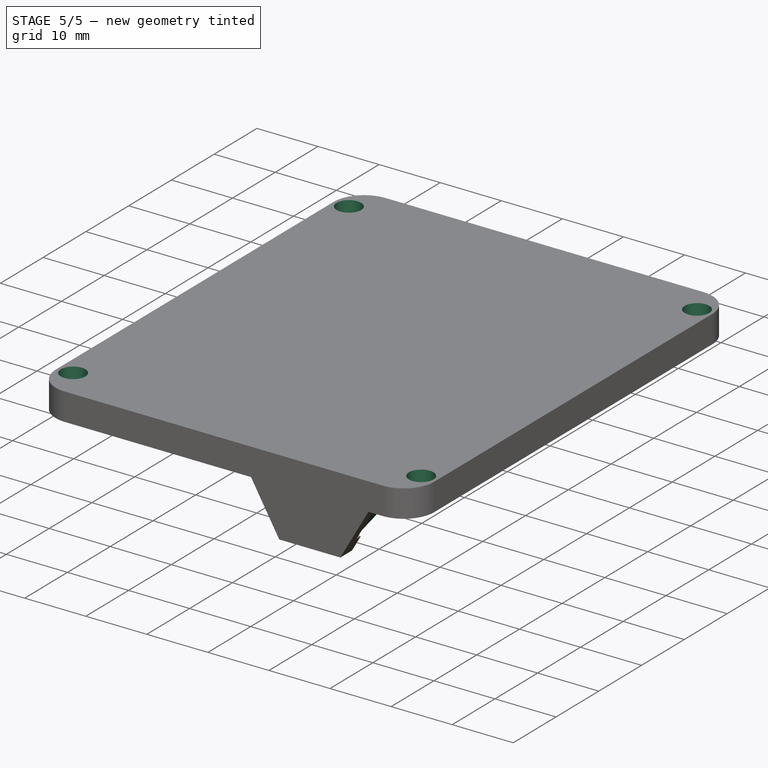
[diagram: stage 5 of 5 — iso view after this stage's code; geometry added in this stage tinted green]
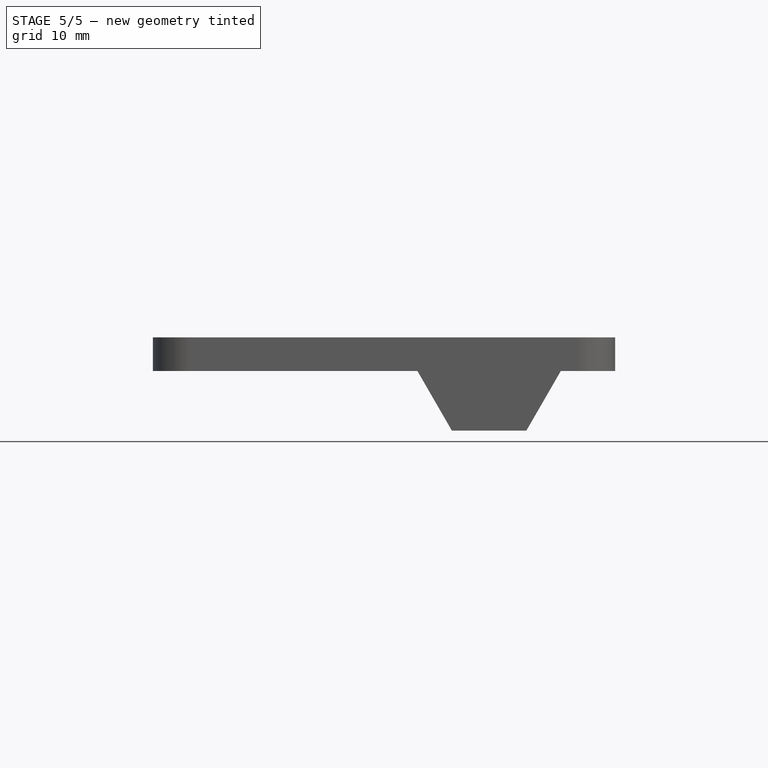
[diagram: stage 5 of 5 — front view after this stage's code; geometry added in this stage tinted green]
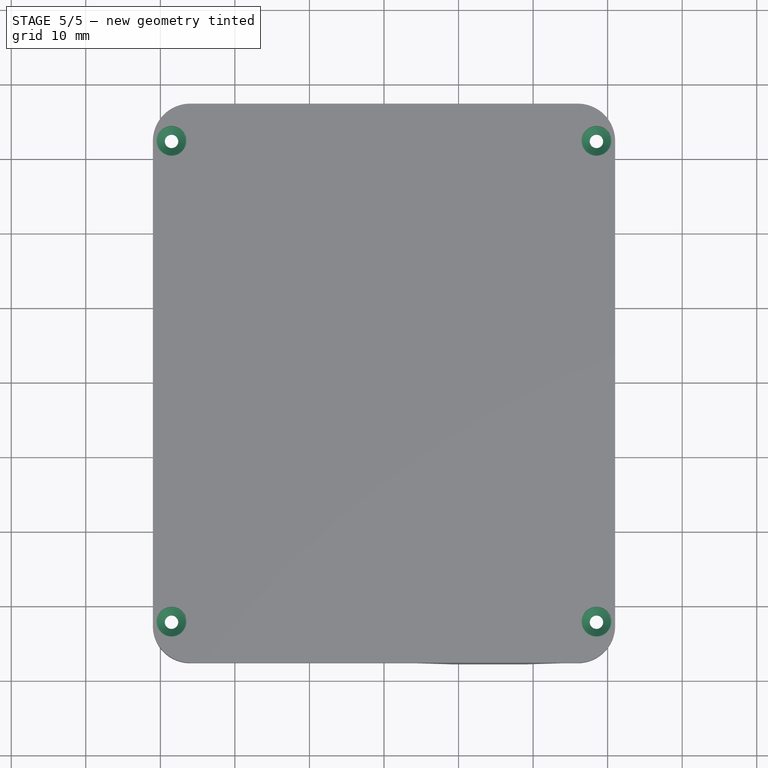
[diagram: stage 5 of 5 — top view after this stage's code; geometry added in this stage tinted green]
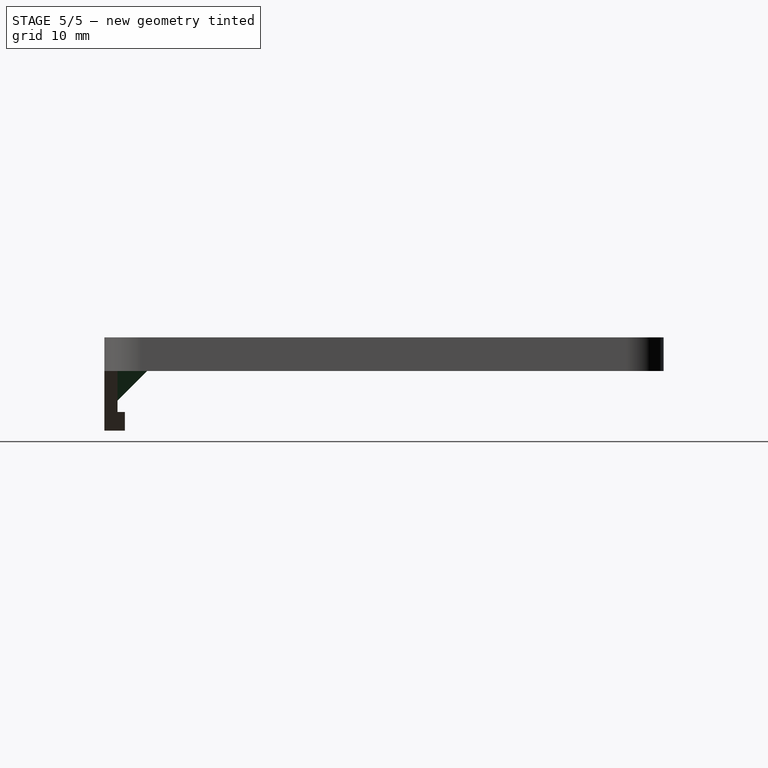
[diagram: stage 5 of 5 — right view after this stage's code; geometry added in this stage tinted green]
FEATURE [PartDesign::Body] Body006  label="Box lower for box upper cut"
  AllowCompound = true
  Group = -> [Clone003]
  Origin = -> Origin006
  Tip = -> Clone003
FEATURE [PartDesign::Boolean] Boolean001
  BaseFeature = -> Fillet001
  Group = -> [Body004,Body006]
  Refine = true
  Suppressed = false
  Type = 1
  UsePlacement = true
FEATURE [PartDesign::Chamfer] Chamfer
  Angle = 45
  Base = -> Boolean001 [Edge33]
  BaseFeature = -> Boolean001
  ChamferType = 0
  FlipDirection = false
  Size = 4
  Size2 = 1
  SupportTransform = false
  Suppressed = false
  UseAllEdges = false
FEATURE [Sketcher::SketchObject] Sketch013  label="screw hole sketch"
  ArcFitTolerance = 1e-06
  AttachmentSupport = -> [Chamfer]
  ExternalGeometry = -> [Binder002]
  FullyConstrained = true
  MakeInternals = false
  MapMode = 5
  Placement = pos=(0,0,5.5) rot=(1,0,0;3.14159rad)
  sketch-geometry (4):
    g0: Circle CenterX=28.5 CenterY=32.25 CenterZ=0 NormalX=0 NormalY=0 NormalZ=1 AngleXU=0 Radius=0.9
    g1: Circle CenterX=28.5 CenterY=-32.25 CenterZ=0 NormalX=0 NormalY=0 NormalZ=1 AngleXU=0 Radius=0.9
    g2: Circle CenterX=-28.5 CenterY=-32.25 CenterZ=0 NormalX=0 NormalY=0 NormalZ=1 AngleXU=0 Radius=0.9
    g3: Circle CenterX=-28.5 CenterY=32.25 CenterZ=0 NormalX=0 NormalY=0 NormalZ=1 AngleXU=0 Radius=0.9
  constraints (8):
    c: Equal(g0,g3)
    c: Equal(g3,g2)
    c: Equal(g2,g1)
    c: Symmetric(g0,g3,g-2)
    c: Equal(g-3,g0)
    c: Coincident(g-3,g0)
    c: Symmetric(g2,g3,g-1)
    c: Symmetric(g1,g0,g-1)
FEATURE [PartDesign::Pocket] Pocket003
  BaseFeature = -> Chamfer
  Direction = (0,0,1)
  Length = 2
  Length2 = 5
  Profile = -> Sketch013
  ReferenceAxis = -> Sketch013 [N_Axis]
  Suppressed = false
  Type = 0
FEATURE [Sketcher::SketchObject] Sketch014
  ArcFitTolerance = 1e-06
  AttachmentSupport = -> [Pocket003]
  ExternalGeometry = -> [Pocket003]
  FullyConstrained = true
  MakeInternals = false
  MapMode = 5
  Placement = pos=(0,0,7.5) rot=(1,0,0;3.14159rad)
  expr: Constraints[1] = <<Data>>.B19
  sketch-geometry (4):
    g0: Circle CenterX=28.5 CenterY=-32.25 CenterZ=0 NormalX=0 NormalY=0 NormalZ=1 AngleXU=0 Radius=2
    g1: Circle CenterX=28.5 CenterY=32.25 CenterZ=0 NormalX=0 NormalY=0 NormalZ=1 AngleXU=0 Radius=2
    g2: Circle CenterX=-28.5 CenterY=32.25 CenterZ=0 NormalX=0 NormalY=0 NormalZ=1 AngleXU=0 Radius=2
    g3: Circle CenterX=-28.5 CenterY=-32.25 CenterZ=0 NormalX=0 NormalY=0 NormalZ=1 AngleXU=0 Radius=2
  constraints (8):
    c: Coincident(g0,g-3)
    c: Diameter(g0) = 4
    c: Equal(g0,g1)
    c: Equal(g1,g2)
    c: Equal(g2,g3)
    c: Symmetric(g0,g1,g-1)
    c: Symmetric(g0,g3,g-2)
    c: Symmetric(g3,g2,g-1)
FEATURE [PartDesign::Pocket] Pocket004  label="Screw head"
  BaseFeature = -> Pocket003
  Direction = (0,0,1)
  Length = 5
  Length2 = 5
  Profile = -> Sketch014
  ReferenceAxis = -> Sketch014 [N_Axis]
  Suppressed = false
  Type = 1
FEATURE [PartDesign::Chamfer] Chamfer001
  Angle = 45
  Base = -> Pocket004 [Edge57,Edge53,Edge55,Edge59]
  BaseFeature = -> Pocket004
  ChamferType = 0
  FlipDirection = false
  Size = 1
  Size2 = 1
  SupportTransform = false
  Suppressed = false
  UseAllEdges = false
FEATURE [PartDesign::Body] Body003  label="Box upper"
  AllowCompound = true
  Group = -> [Binder001,Sketch011,Pad010,Fillet001,Boolean001,Chamfer,Sketch013,Binder002,Pocket003,Sketch014,Pocket004,Chamfer001]
  Origin = -> Origin003
  Tip = -> Chamfer001
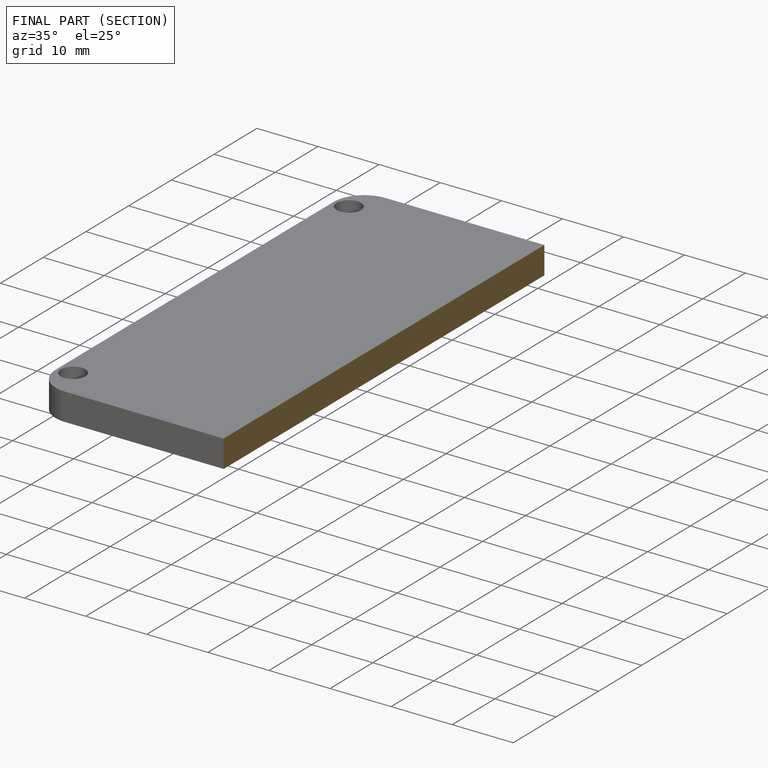
[diagram: finished part — half-section view (interior)]
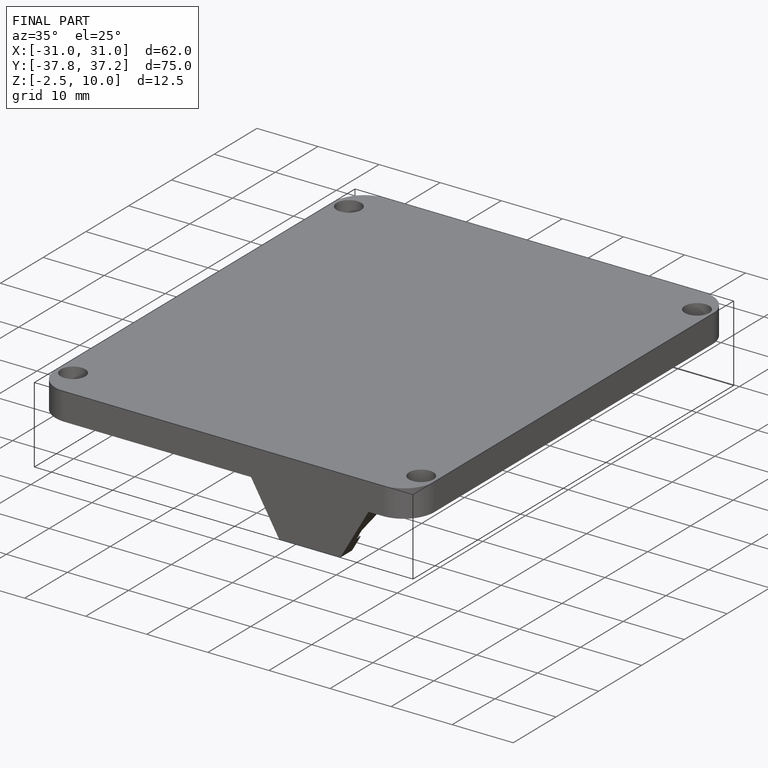
[diagram: finished part — iso view with bounding-box wireframe]
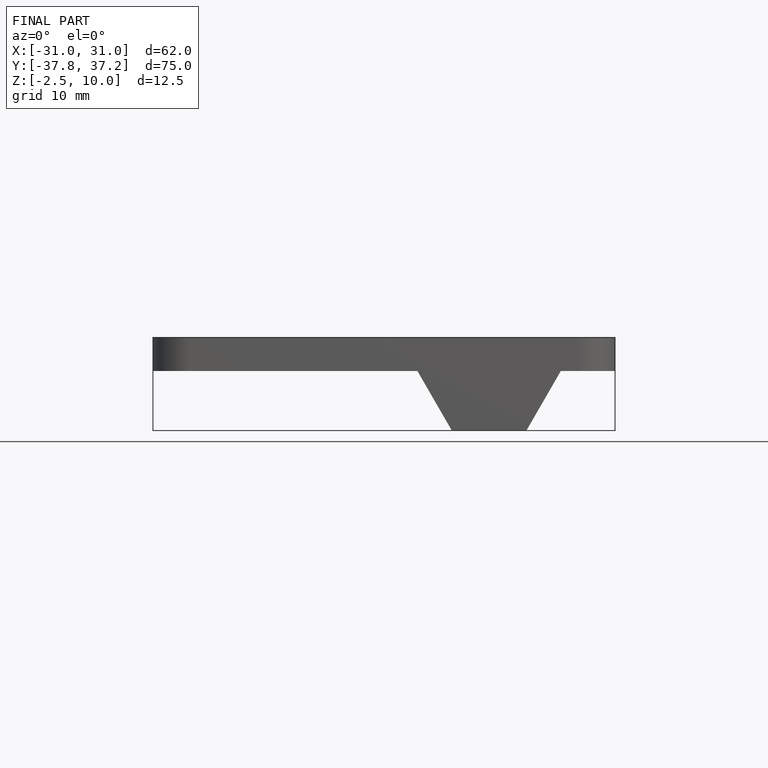
[diagram: finished part — front view with bounding-box wireframe]
